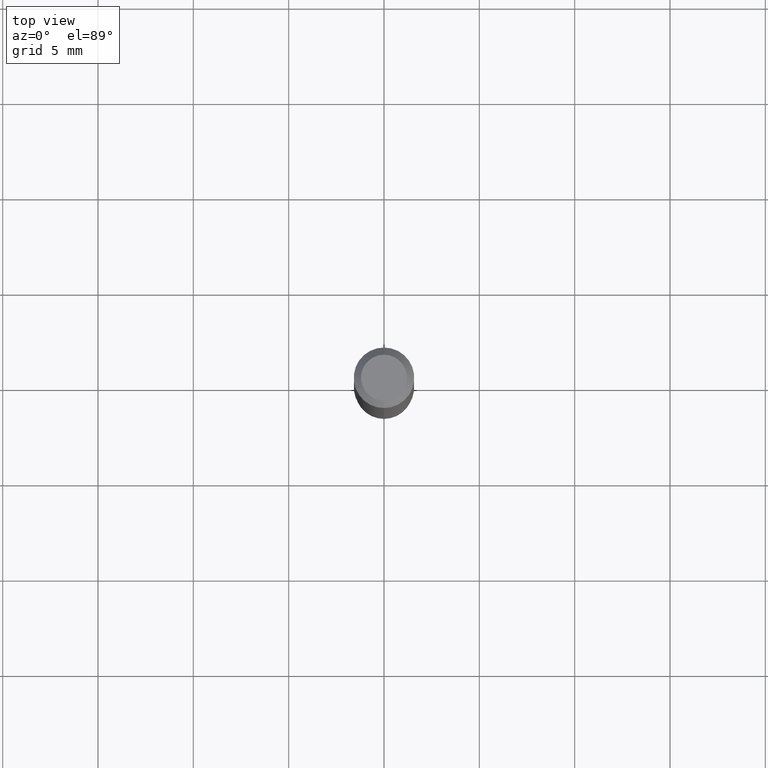
[diagram: clean part render]
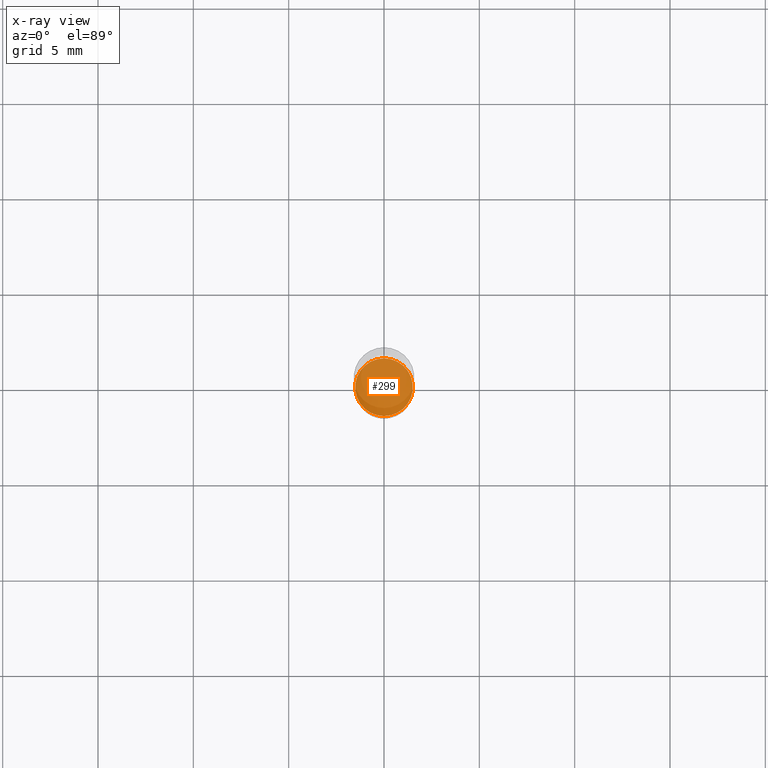
[diagram: x-ray — body ghosted, one internal face saturated and labeled with its STEP entity id]
A machine part, top view, then the same camera in x-ray: the body is ghosted and one INTERNAL B-rep face — a face not visible from any outside direction — is saturated and labeled: STEP entity #299.
In plain terms, the highlighted planar face has unit normal (-0, 0, 1).
Its self-contained STEP definition (entity closure, byte-faithful):
#12 = CARTESIAN_POINT ( 'NONE',  ( 2.788007565382676486E-29, -3.980040799520567158E-15, -1.140000000000000124 ) ) ;
#33 = CARTESIAN_POINT ( 'NONE',  ( 2.788007565382676486E-29, -3.980040799520567158E-15, -1.140000000000000124 ) ) ;
#52 = EDGE_CURVE ( 'NONE', #417, #425, #188, .T. ) ;
#101 = CARTESIAN_POINT ( 'NONE',  ( 4.245492846166878976E-16, 0.05949999999999602135, -1.140000000000000346 ) ) ;
#118 = DIRECTION ( 'NONE',  ( -6.982962677686265922E-15, -1.000000000000000000, 4.591341165822291216E-15 ) ) ;
#128 = AXIS2_PLACEMENT_3D ( 'NONE', #333, #488, #399 ) ;
#188 = CIRCLE ( 'NONE', #128, 0.05949999999999999734 ) ;
#197 = ORIENTED_EDGE ( 'NONE', *, *, #52, .F. ) ;
#201 = AXIS2_PLACEMENT_3D ( 'NONE', #33, #439, #313 ) ;
#226 = CARTESIAN_POINT ( 'NONE',  ( -4.154862793223048825E-16, -0.05950000000000398026, -1.139999999999999902 ) ) ;
#236 = EDGE_LOOP ( 'NONE', ( #446, #197 ) ) ;
#299 = ADVANCED_FACE ( 'NONE', ( #364 ), #362, .F. ) ;
#313 = DIRECTION ( 'NONE',  ( -6.982962677686265922E-15, -1.000000000000000000, 3.491263859228567350E-15 ) ) ;
#333 = CARTESIAN_POINT ( 'NONE',  ( 2.788007565382676486E-29, -3.980040799520567158E-15, -1.140000000000000124 ) ) ;
#362 = PLANE ( 'NONE',  #201 ) ;
#364 = FACE_OUTER_BOUND ( 'NONE', #236, .T. ) ;
#384 = CIRCLE ( 'NONE', #418, 0.05949999999999999734 ) ;
#399 = DIRECTION ( 'NONE',  ( -6.982962677686265922E-15, -1.000000000000000000, 4.591341165822291216E-15 ) ) ;
#417 = VERTEX_POINT ( 'NONE', #101 ) ;
#418 = AXIS2_PLACEMENT_3D ( 'NONE', #12, #456, #118 ) ;
#425 = VERTEX_POINT ( 'NONE', #226 ) ;
#439 = DIRECTION ( 'NONE',  ( -2.445620671388311989E-29, 3.491263859228567350E-15, 1.000000000000000000 ) ) ;
#446 = ORIENTED_EDGE ( 'NONE', *, *, #490, .F. ) ;
#456 = DIRECTION ( 'NONE',  ( -2.445620671388312549E-29, 3.491263859228567350E-15, 1.000000000000000000 ) ) ;
#488 = DIRECTION ( 'NONE',  ( -2.445620671388312549E-29, 3.491263859228567350E-15, 1.000000000000000000 ) ) ;
#490 = EDGE_CURVE ( 'NONE', #425, #417, #384, .T. ) ;